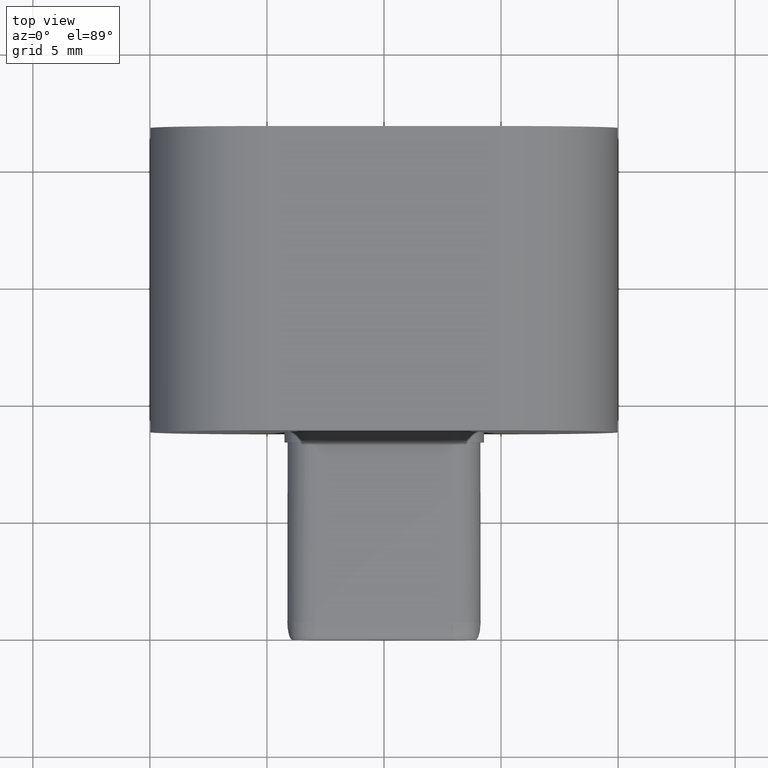
[diagram: clean part render]
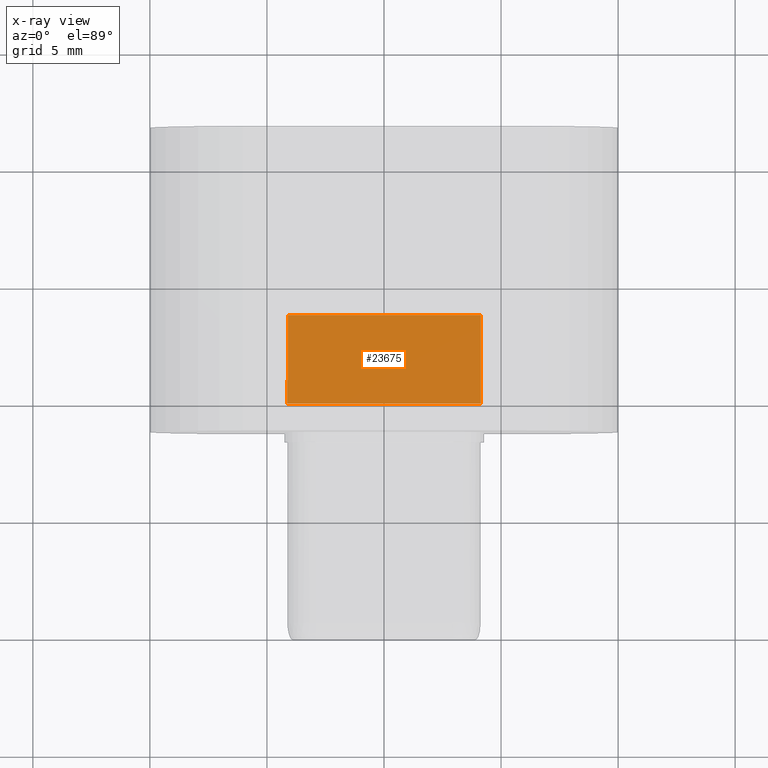
[diagram: x-ray — body ghosted, one internal face saturated and labeled with its STEP entity id]
A machine part, top view, then the same camera in x-ray: the body is ghosted and one INTERNAL B-rep face — a face not visible from any outside direction — is saturated and labeled: STEP entity #23675.
In plain terms, the highlighted planar face has unit normal (0, -0, 1).
Its self-contained STEP definition (entity closure, byte-faithful):
#2093=FACE_OUTER_BOUND('',#3523,.T.);
#3523=EDGE_LOOP('',(#16910,#16911,#16912,#16913,#16914,#16915));
#5147=LINE('',#35345,#7712);
#5149=LINE('',#35349,#7714);
#5150=LINE('',#35351,#7715);
#5151=LINE('',#35353,#7716);
#5152=LINE('',#35355,#7717);
#5153=LINE('',#35356,#7718);
#7712=VECTOR('',#27285,10.);
#7714=VECTOR('',#27289,10.);
#7715=VECTOR('',#27290,10.);
#7716=VECTOR('',#27291,10.);
#7717=VECTOR('',#27292,10.);
#7718=VECTOR('',#27293,10.);
#10286=VERTEX_POINT('',#35342);
#10287=VERTEX_POINT('',#35344);
#10288=VERTEX_POINT('',#35348);
#10289=VERTEX_POINT('',#35350);
#10290=VERTEX_POINT('',#35352);
#10291=VERTEX_POINT('',#35354);
#12778=EDGE_CURVE('',#10287,#10286,#5147,.T.);
#12780=EDGE_CURVE('',#10286,#10288,#5149,.T.);
#12781=EDGE_CURVE('',#10288,#10289,#5150,.T.);
#12782=EDGE_CURVE('',#10289,#10290,#5151,.T.);
#12783=EDGE_CURVE('',#10290,#10291,#5152,.T.);
#12784=EDGE_CURVE('',#10291,#10287,#5153,.T.);
#16910=ORIENTED_EDGE('',*,*,#12778,.T.);
#16911=ORIENTED_EDGE('',*,*,#12780,.T.);
#16912=ORIENTED_EDGE('',*,*,#12781,.T.);
#16913=ORIENTED_EDGE('',*,*,#12782,.T.);
#16914=ORIENTED_EDGE('',*,*,#12783,.T.);
#16915=ORIENTED_EDGE('',*,*,#12784,.T.);
#22579=PLANE('',#25122);
#23675=ADVANCED_FACE('',(#2093),#22579,.T.);
#25122=AXIS2_PLACEMENT_3D('',#35347,#27287,#27288);
#27285=DIRECTION('',(-1.,0.,0.));
#27287=DIRECTION('center_axis',(0.,1.,0.));
#27288=DIRECTION('ref_axis',(0.,0.,1.));
#27289=DIRECTION('',(0.,0.,1.));
#27290=DIRECTION('',(-1.,0.,0.));
#27291=DIRECTION('',(0.,0.,1.));
#27292=DIRECTION('',(1.,0.,0.));
#27293=DIRECTION('',(0.,0.,-1.));
#35342=CARTESIAN_POINT('',(-4.11197480409729,0.4,-13.8726897671165));
#35344=CARTESIAN_POINT('',(4.13802519590271,0.4,-13.8726897671165));
#35345=CARTESIAN_POINT('',(3.91131571575443E-12,0.4,-13.8726897671165));
#35347=CARTESIAN_POINT('Origin',(0.,0.4,-12.2486623019238));
#35348=CARTESIAN_POINT('',(-4.11197480409729,0.4,-11.0986623019238));
#35349=CARTESIAN_POINT('',(-4.11197480409729,0.4,-12.6986623019238));
#35350=CARTESIAN_POINT('',(-4.13802519590271,0.4,-11.0986623019238));
#35351=CARTESIAN_POINT('',(-3.1925066716809,0.4,-11.0986623019238));
#35352=CARTESIAN_POINT('',(-4.13802519590271,0.4,-10.0986623019238));
#35353=CARTESIAN_POINT('',(-4.13802519590271,0.4,-11.0986623019238));
#35354=CARTESIAN_POINT('',(4.13802519590271,0.4,-10.0986623019238));
#35355=CARTESIAN_POINT('',(-4.13802519590271,0.4,-10.0986623019238));
#35356=CARTESIAN_POINT('',(4.13802519590271,0.4,-11.0986623019238));